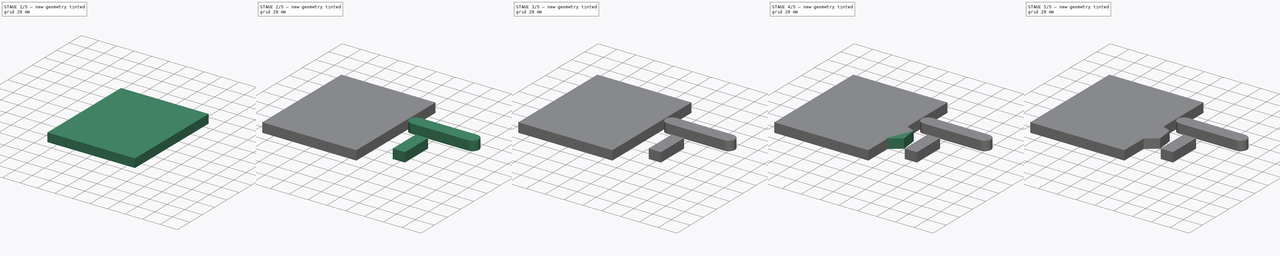
[diagram: build sequence overview — one tinted view per stage of 5, left to right]
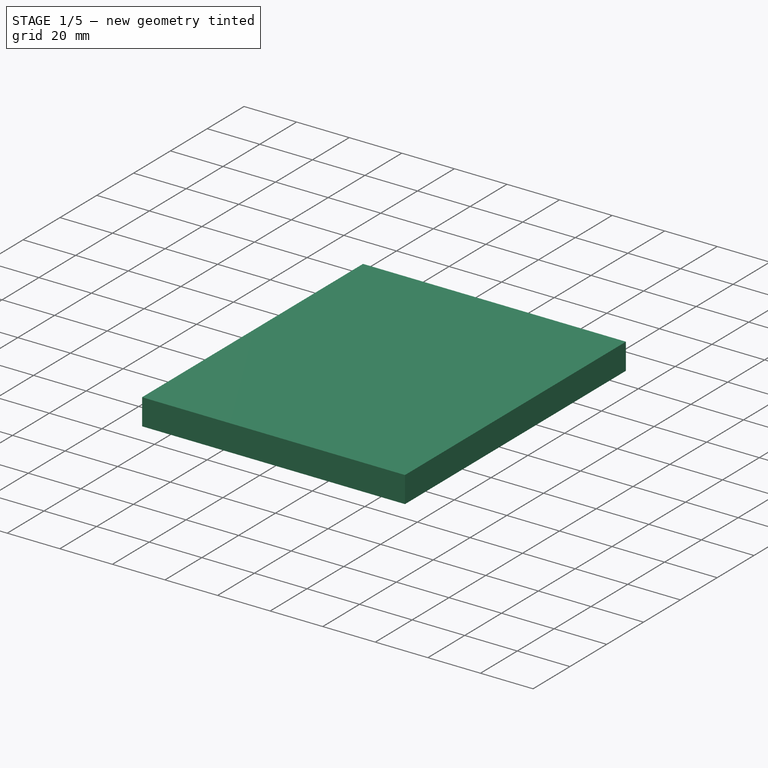
[diagram: stage 1 of 5 — iso view after this stage's code; geometry added in this stage tinted green]
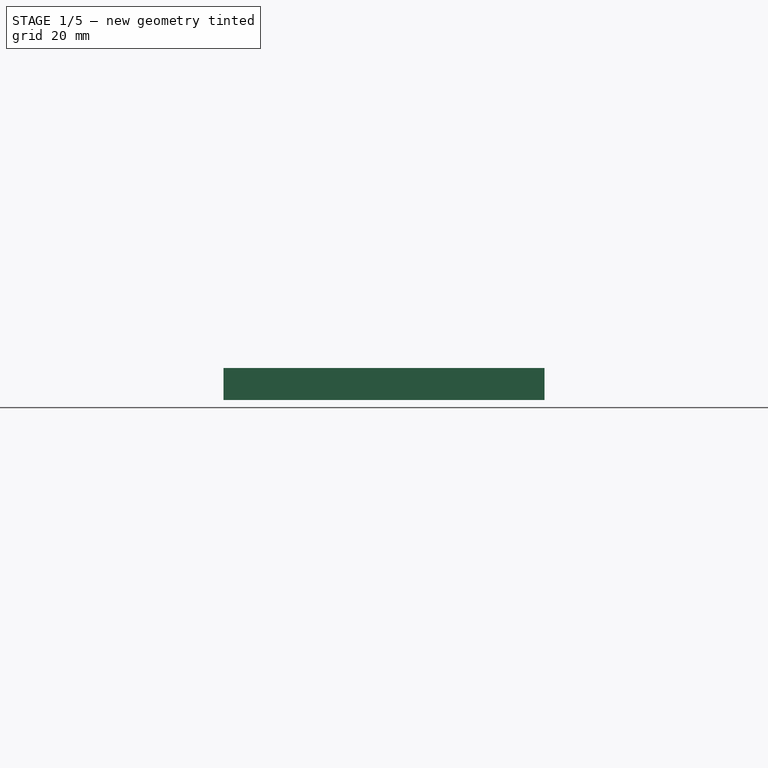
[diagram: stage 1 of 5 — front view after this stage's code; geometry added in this stage tinted green]
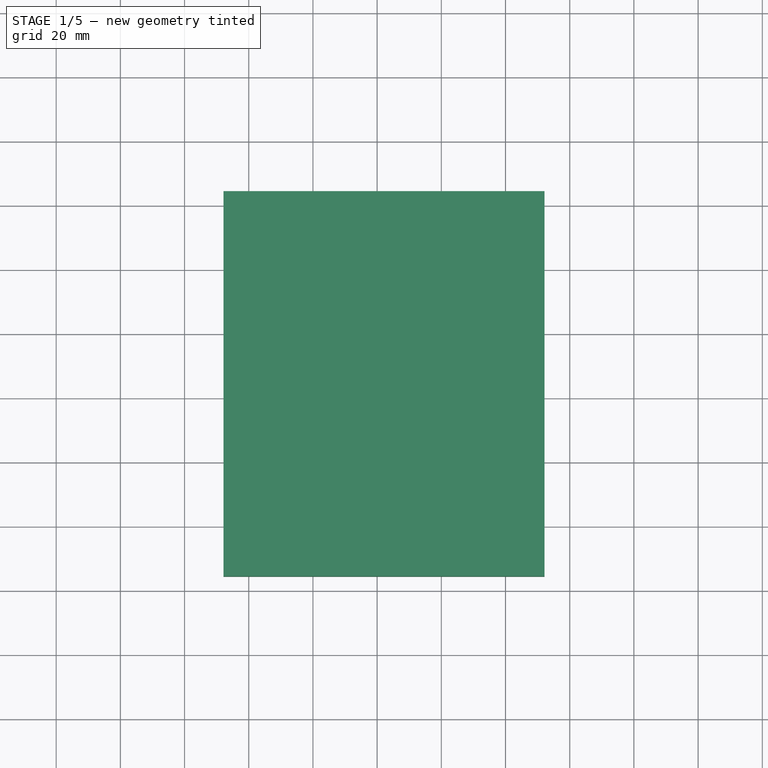
[diagram: stage 1 of 5 — top view after this stage's code; geometry added in this stage tinted green]
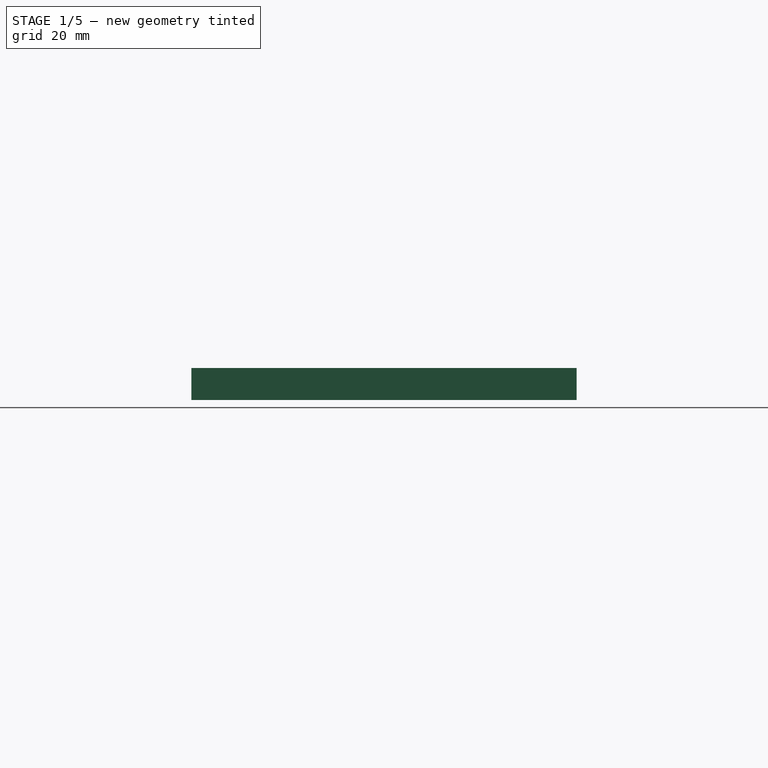
[diagram: stage 1 of 5 — right view after this stage's code; geometry added in this stage tinted green]
FCSTD DOCUMENT  (FreeCAD 0.18R15481 (Git))
Label: nestdemo
License: All rights reserved
LicenseURL: http://en.wikipedia.org/wiki/All_rights_reserved
objects: Part::FeaturePython×8, Sketcher::SketchObject×7, PartDesign::Pad×7, PartDesign::Body×7, Path::FeaturePython×2, Path::FeatureCompoundPython×1, App::FeaturePython×1, App::DocumentObjectGroup×1
note: 36 computed .brp shape members not serialized (recipe doc carries the construction recipe); baked Part::Feature solids carry a one-line shape summary decoded from their .brp

FEATURE [PartDesign::Body] Body005
  Group = -> [Sketch005,Pad005]
  Origin = -> Origin005
  Tip = -> Pad005
FEATURE [Sketcher::SketchObject] Sketch006
  MapMode = 5
  Support = -> [XY_Plane006]
  sketch-geometry (3):
    g0: LineSegment StartX=-33.0631 StartY=34.9198 StartZ=0 EndX=-22.4 EndY=42.9979 EndZ=0
    g1: LineSegment StartX=-22.4 StartY=42.9979 StartZ=0 EndX=-21.7538 EndY=30.073 EndZ=0
    g2: LineSegment StartX=-21.7538 StartY=30.073 StartZ=0 EndX=-33.0631 EndY=34.9198 EndZ=0
  constraints (3):
    c: Coincident(g0,g1)
    c: Coincident(g1,g2)
    c: Coincident(g2,g0)
FEATURE [PartDesign::Pad] Pad006
  Length = 10
  Length2 = 100
  Profile = -> Sketch006
  Type = 0
FEATURE [Part::FeaturePython] Clone006  label="Model-Body006"  # Draft clone (typed FeaturePython)
  AttacherType = Attacher::AttachEngine3D
  Fuse = false
  Objects = -> [Body006]
  PathResource = Model
  Scale = (1,1,1)
FEATURE [App::DocumentObjectGroup] Model
  Group = -> [Clone,Clone001,Clone002,Clone003,Clone004,Clone005,Clone006]
FEATURE [Path::FeaturePython] Default_Tool  label="Default Tool"  # Path/CAM operation (typed FeaturePython)
  HorizFeed = 0
  HorizRapid = 0
  SpindleDir = 0
  SpindleSpeed = 0
  ToolNumber = 1
  VertFeed = 0
  VertRapid = 0
  expr: HorizRapid = SetupSheet.HorizRapid
  expr: VertRapid = SetupSheet.VertRapid
FEATURE [Part::FeaturePython] Stock001  # WARN: FeaturePython — macro-defined, semantics opaque (R4)
  Height = 10
  Length = 100
  Placement = pos=(-67.8629,-35.5111,0) rot=(0,0,1;0rad)
  StockType = CreateBox
  Width = 120
FEATURE [Path::FeaturePython] Job  # Path/CAM operation (typed FeaturePython)
  GeometryTolerance = 0.01
  Model = -> Model
  Operations = -> Operations
  PostProcessor = 1
  SetupSheet = -> SetupSheet
  Stock = -> Stock001
  ToolController = -> [Default_Tool]
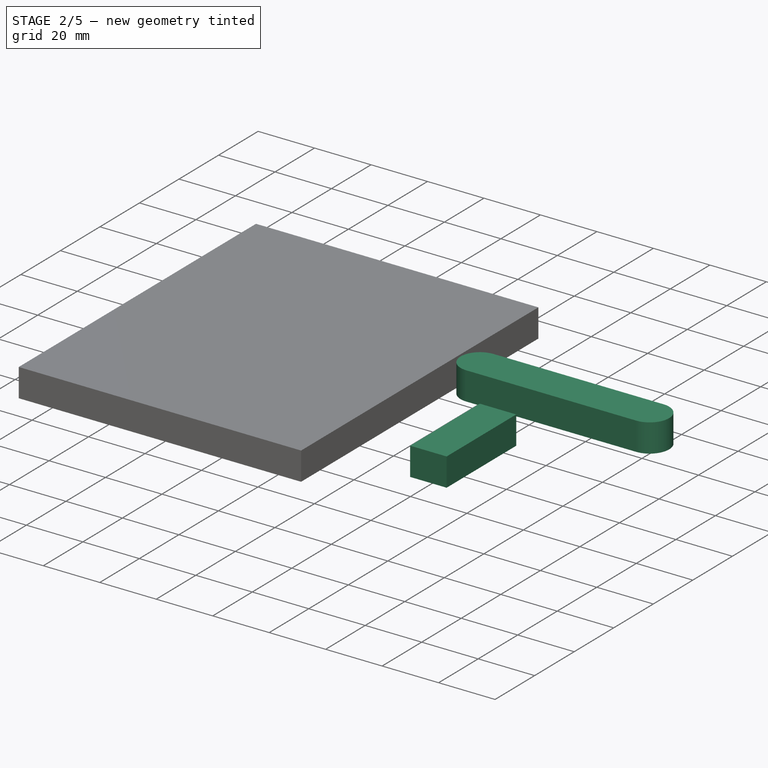
[diagram: stage 2 of 5 — iso view after this stage's code; geometry added in this stage tinted green]
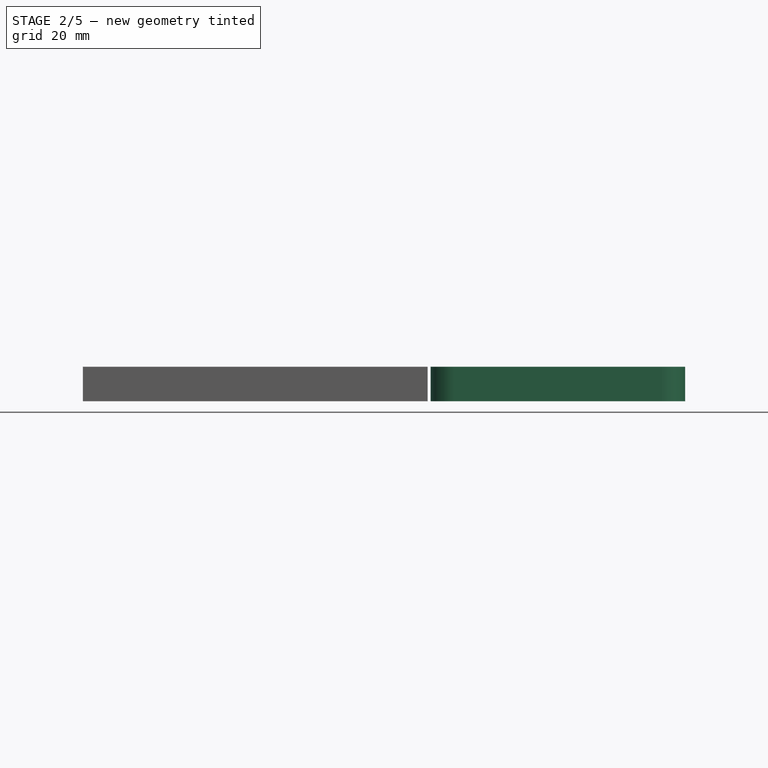
[diagram: stage 2 of 5 — front view after this stage's code; geometry added in this stage tinted green]
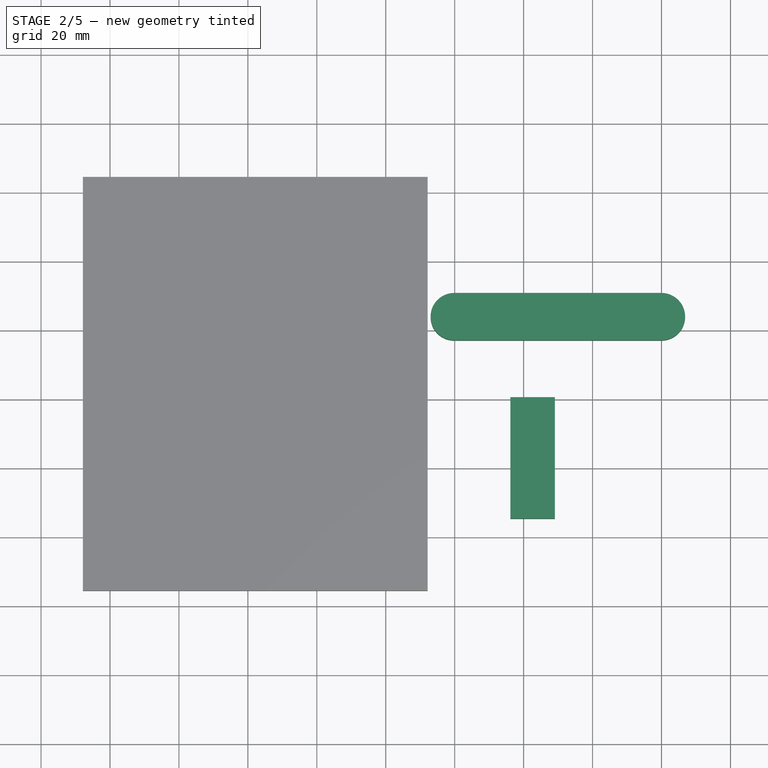
[diagram: stage 2 of 5 — top view after this stage's code; geometry added in this stage tinted green]
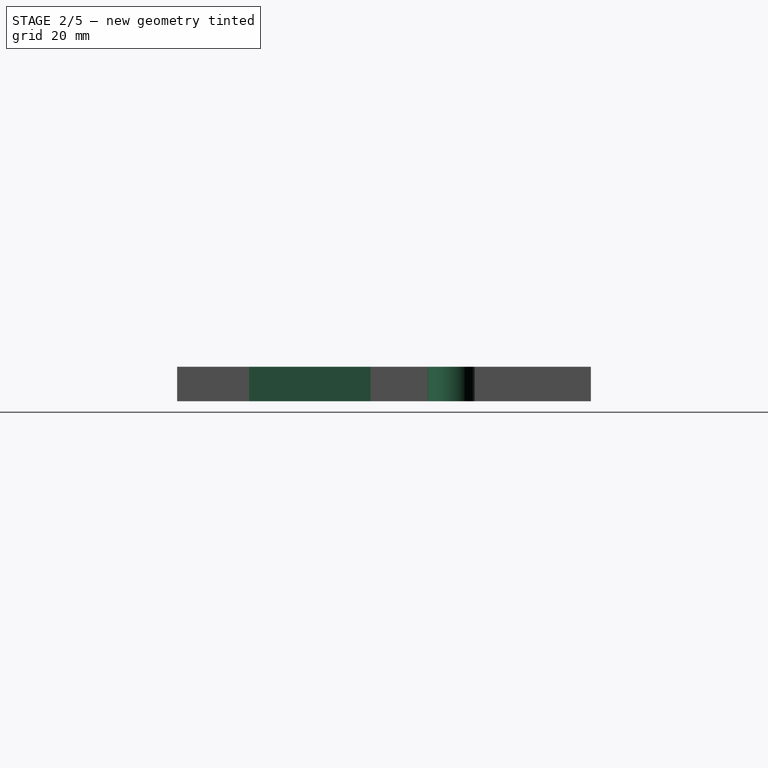
[diagram: stage 2 of 5 — right view after this stage's code; geometry added in this stage tinted green]
FEATURE [PartDesign::Body] Body002
  Group = -> [Sketch002,Pad002]
  Origin = -> Origin002
  Tip = -> Pad002
FEATURE [Sketcher::SketchObject] Sketch003
  MapMode = 5
  Support = -> [XY_Plane004]
  sketch-geometry (4):
    g0: ArcOfCircle CenterX=39.8673 CenterY=43.9558 CenterZ=0 NormalX=0 NormalY=0 NormalZ=1 AngleXU=0 Radius=6.86841 StartAngle=1.5708 EndAngle=4.71239
    g1: ArcOfCircle CenterX=99.9753 CenterY=43.9558 CenterZ=0 NormalX=0 NormalY=0 NormalZ=1 AngleXU=0 Radius=6.86841 StartAngle=4.71239 EndAngle=7.85398
    g2: LineSegment StartX=39.8673 StartY=37.0874 StartZ=0 EndX=99.9753 EndY=37.0874 EndZ=0
    g3: LineSegment StartX=39.8673 StartY=50.8242 StartZ=0 EndX=99.9753 EndY=50.8242 EndZ=0
  constraints (6):
    c: Tangent(g0,g3) = 1.5708
    c: Tangent(g0,g2) = -1.5708
    c: Tangent(g2,g1) = -1.5708
    c: Tangent(g3,g1) = 1.5708
    c: Horizontal(g2)
    c: Equal(g0,g1)
FEATURE [PartDesign::Pad] Pad003
  Length = 10
  Length2 = 100
  Profile = -> Sketch003
  Type = 0
FEATURE [PartDesign::Body] Body003
  Group = -> [Sketch004,Pad004]
  Origin = -> Origin003
  Tip = -> Pad004
FEATURE [Sketcher::SketchObject] Sketch005
  MapMode = 5
  Support = -> [XY_Plane005]
  sketch-geometry (4):
    g0: LineSegment StartX=56.1333 StartY=20.5902 StartZ=0 EndX=69.0582 EndY=20.5902 EndZ=0
    g1: LineSegment StartX=69.0582 StartY=20.5902 StartZ=0 EndX=69.0582 EndY=-14.6302 EndZ=0
    g2: LineSegment StartX=69.0582 StartY=-14.6302 StartZ=0 EndX=56.1333 EndY=-14.6302 EndZ=0
    g3: LineSegment StartX=56.1333 StartY=-14.6302 StartZ=0 EndX=56.1333 EndY=20.5902 EndZ=0
  constraints (8):
    c: Coincident(g0,g1)
    c: Coincident(g1,g2)
    c: Coincident(g2,g3)
    c: Coincident(g3,g0)
    c: Horizontal(g0)
    c: Horizontal(g2)
    c: Vertical(g1)
    c: Vertical(g3)
FEATURE [PartDesign::Pad] Pad005
  Length = 10
  Length2 = 100
  Profile = -> Sketch005
  Type = 0
FEATURE [Part::FeaturePython] Clone005  label="Model-Body005"  # Draft clone (typed FeaturePython)
  AttacherType = Attacher::AttachEngine3D
  Fuse = false
  Objects = -> [Body005]
  PathResource = Model
  Scale = (1,1,1)
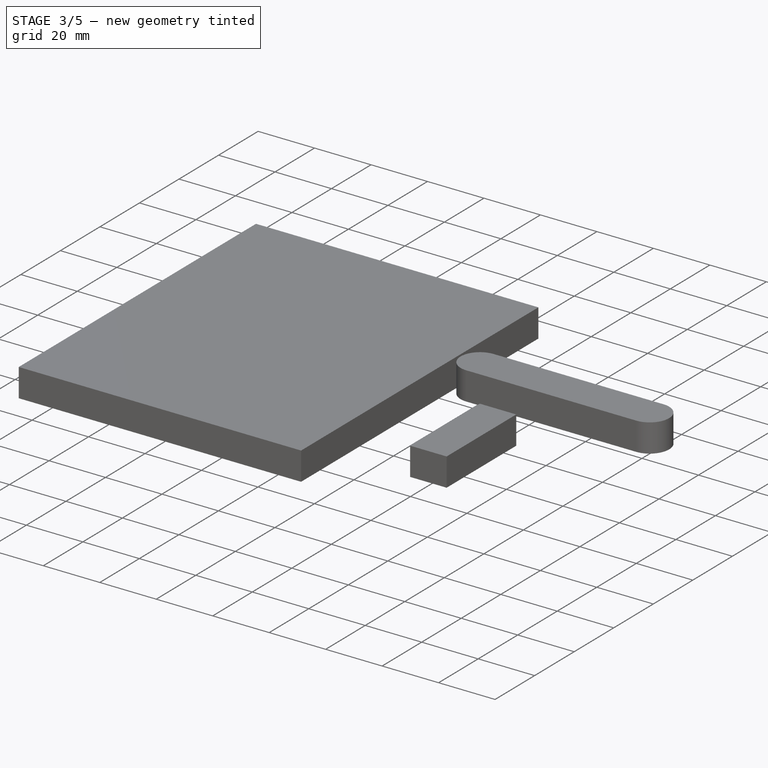
[diagram: stage 3 of 5 — iso view after this stage's code; geometry added in this stage tinted green]
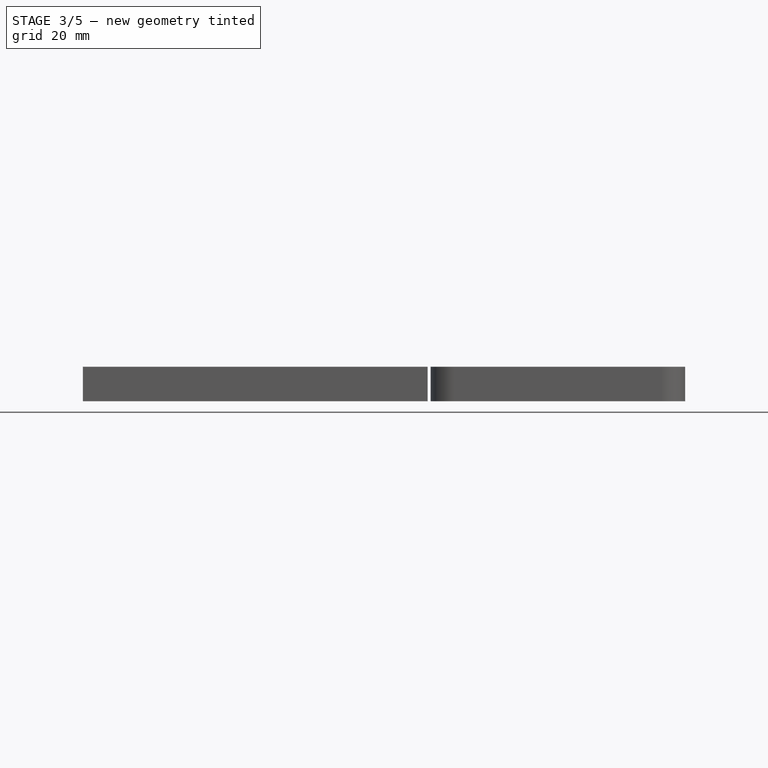
[diagram: stage 3 of 5 — front view after this stage's code; geometry added in this stage tinted green]
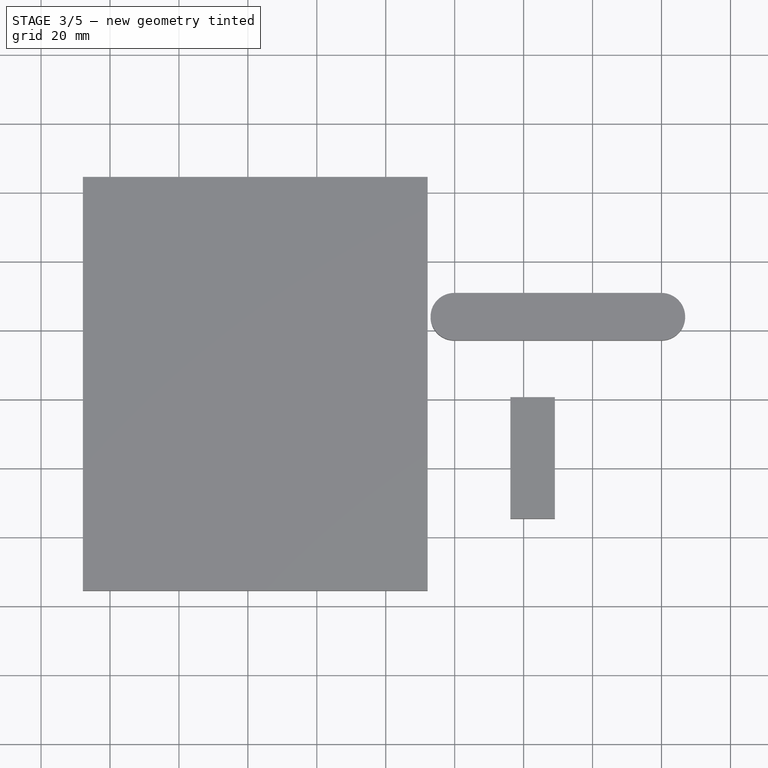
[diagram: stage 3 of 5 — top view after this stage's code; geometry added in this stage tinted green]
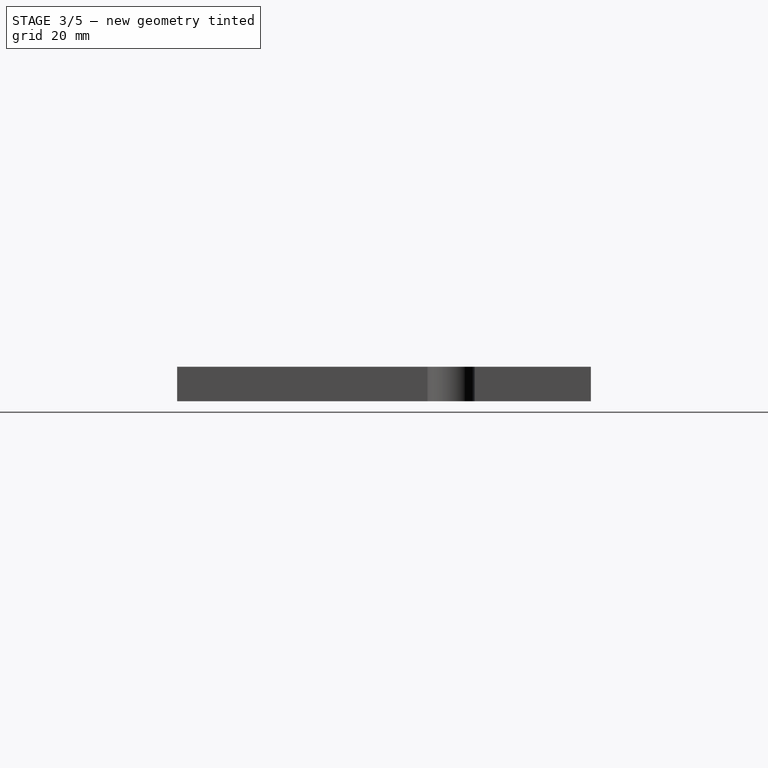
[diagram: stage 3 of 5 — right view after this stage's code; geometry added in this stage tinted green]
FEATURE [PartDesign::Body] Body004
  Group = -> [Sketch003,Pad003]
  Origin = -> Origin004
  Tip = -> Pad003
FEATURE [Sketcher::SketchObject] Sketch004
  MapMode = 5
  Support = -> [XY_Plane003]
  sketch-geometry (6):
    g0: LineSegment StartX=-6.51538 StartY=4.41575 StartZ=0 EndX=3.50262 EndY=4.41575 EndZ=0
    g1: LineSegment StartX=3.50262 StartY=4.41575 StartZ=0 EndX=6.69676 EndY=-7.19932 EndZ=0
    g2: LineSegment StartX=6.69676 StartY=-7.19932 StartZ=0 EndX=3.21224 EndY=-35.5111 EndZ=0
    g3: LineSegment StartX=3.21224 StartY=-35.5111 StartZ=0 EndX=-5.93463 EndY=-35.5111 EndZ=0
    g4: LineSegment StartX=-5.93463 StartY=-35.5111 StartZ=0 EndX=-9.12877 EndY=-5.60224 EndZ=0
    g5: LineSegment StartX=-9.12877 StartY=-5.60224 StartZ=0 EndX=-6.51538 EndY=4.41575 EndZ=0
  constraints (8):
    c: Horizontal(g0)
    c: Coincident(g0,g1)
    c: Coincident(g1,g2)
    c: Coincident(g2,g3)
    c: Horizontal(g3)
    c: Coincident(g3,g4)
    c: Coincident(g4,g5)
    c: Coincident(g5,g0)
FEATURE [PartDesign::Pad] Pad004
  Length = 10
  Length2 = 100
  Profile = -> Sketch004
  Type = 0
FEATURE [Part::FeaturePython] Clone003  label="Model-Body003"  # Draft clone (typed FeaturePython)
  AttacherType = Attacher::AttachEngine3D
  Fuse = false
  Objects = -> [Body003]
  PathResource = Model
  Scale = (1,1,1)
FEATURE [Part::FeaturePython] Clone004  label="Model-Body004"  # Draft clone (typed FeaturePython)
  AttacherType = Attacher::AttachEngine3D
  Fuse = false
  Objects = -> [Body004]
  PathResource = Model
  Scale = (1,1,1)
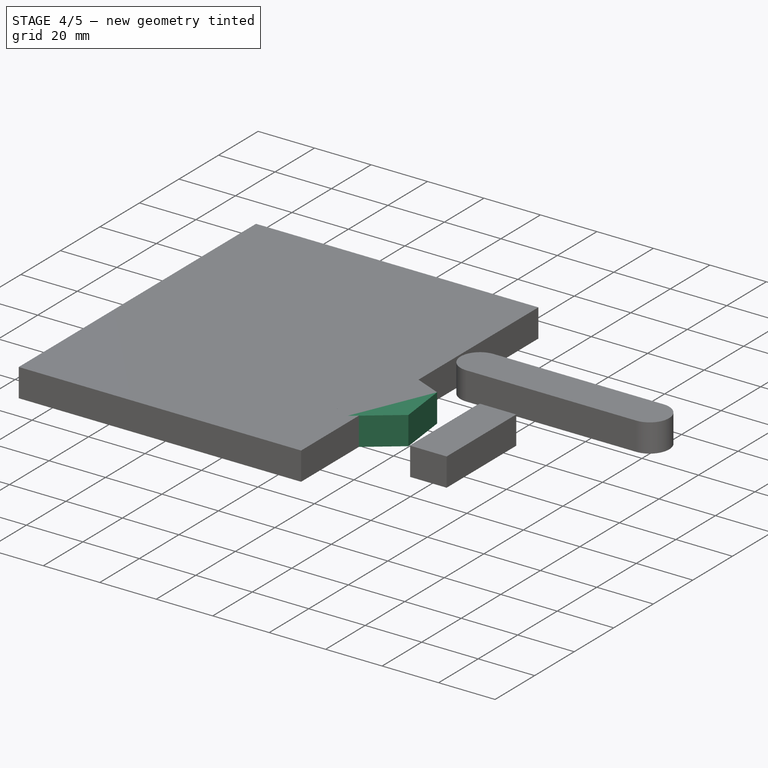
[diagram: stage 4 of 5 — iso view after this stage's code; geometry added in this stage tinted green]
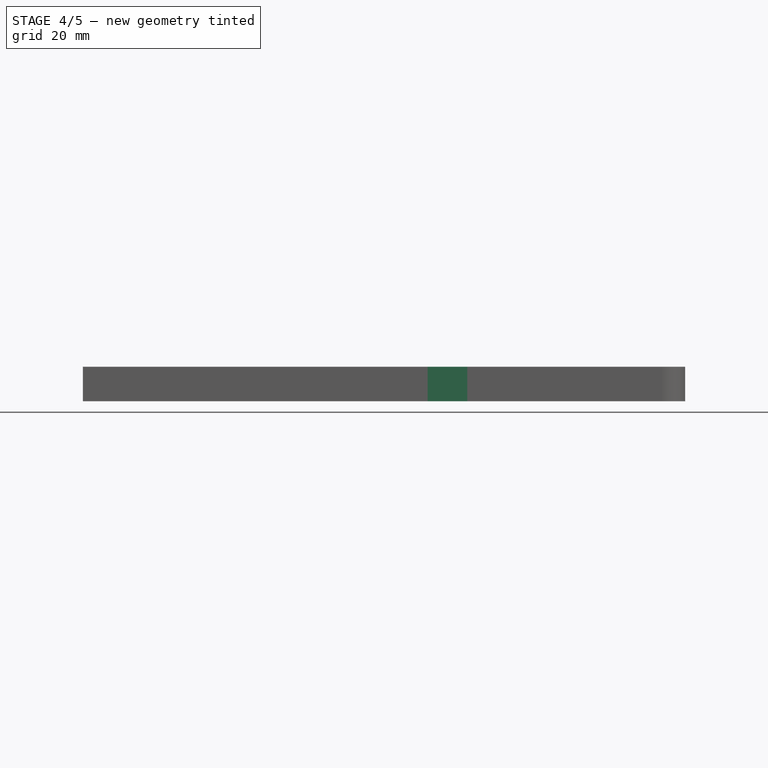
[diagram: stage 4 of 5 — front view after this stage's code; geometry added in this stage tinted green]
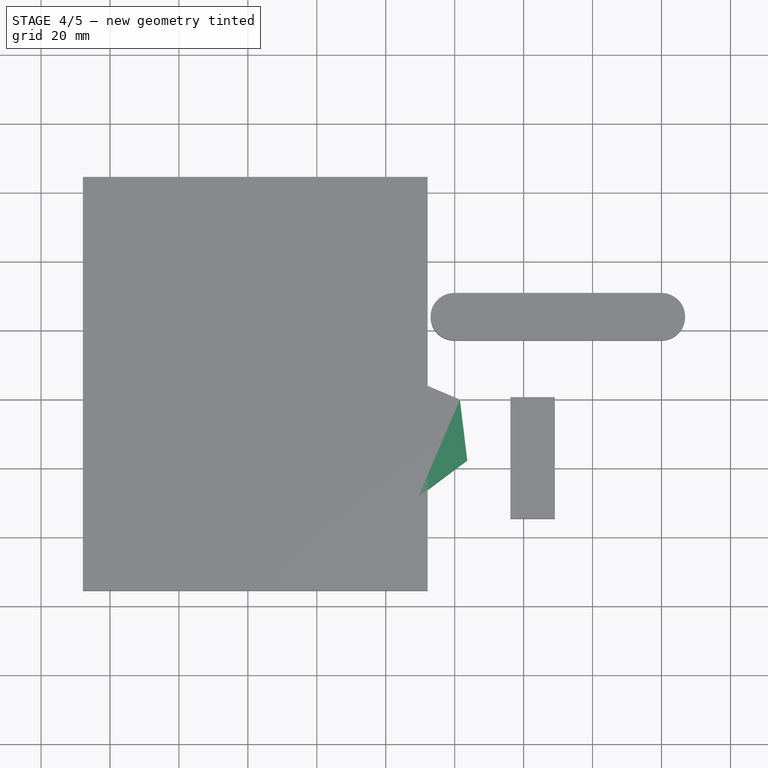
[diagram: stage 4 of 5 — top view after this stage's code; geometry added in this stage tinted green]
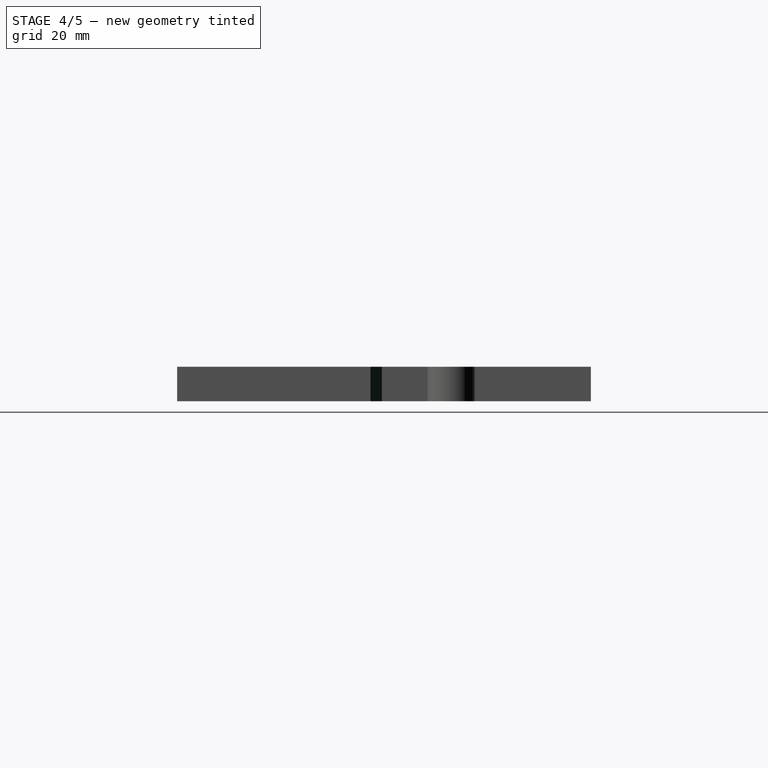
[diagram: stage 4 of 5 — right view after this stage's code; geometry added in this stage tinted green]
FEATURE [PartDesign::Body] Body
  Group = -> [Sketch,Pad]
  Origin = -> Origin
  Tip = -> Pad
FEATURE [Sketcher::SketchObject] Sketch001
  MapMode = 5
  Support = -> [XY_Plane001]
  sketch-geometry (7):
    g0: LineSegment StartX=43.6291 StartY=2.35548 StartZ=0 EndX=41.5092 EndY=19.8893 EndZ=0
    g1: LineSegment StartX=41.5092 StartY=19.8893 StartZ=0 EndX=25.2645 EndY=26.8204 EndZ=0
    g2: LineSegment StartX=25.2645 StartY=26.8204 StartZ=0 EndX=11.1397 EndY=16.2176 EndZ=0
    g3: LineSegment StartX=11.1397 StartY=16.2176 StartZ=0 EndX=13.2596 EndY=-1.31623 EndZ=0
    g4: LineSegment StartX=13.2596 StartY=-1.31623 StartZ=0 EndX=29.5043 EndY=-8.24728 EndZ=0
    g5: LineSegment StartX=29.5043 StartY=-8.24728 StartZ=0 EndX=43.6291 EndY=2.35548 EndZ=0
    g6: Circle [constr] CenterX=27.3844 CenterY=9.28654 CenterZ=0 NormalX=0 NormalY=0 NormalZ=1 AngleXU=0 Radius=17.6615
  constraints (13):
    c: Coincident(g0,g1)
    c: Coincident(g1,g2)
    c: Coincident(g2,g3)
    c: Coincident(g3,g4)
    c: Coincident(g4,g5)
    c: Coincident(g5,g0)
    c: Equal(g0, g1-g5) x5
    c: PointOnObject(g0,g6)
    c: PointOnObject(g1,g6)
    c: PointOnObject(g2,g6)
    c: PointOnObject(g3,g6)
    c: PointOnObject(g4,g6)
    c: PointOnObject(g5,g6)
FEATURE [PartDesign::Pad] Pad001
  Length = 10
  Length2 = 100
  Profile = -> Sketch001
  Type = 0
FEATURE [PartDesign::Body] Body001
  Group = -> [Sketch001,Pad001]
  Origin = -> Origin001
  Tip = -> Pad001
FEATURE [Sketcher::SketchObject] Sketch002
  MapMode = 5
  Support = -> [XY_Plane002]
  sketch-geometry (4):
    g0: LineSegment StartX=-16.4861 StartY=54.6064 StartZ=0 EndX=-2.62398 EndY=28.1817 EndZ=0
    g1: LineSegment StartX=-2.62398 StartY=28.1817 StartZ=0 EndX=4.30707 EndY=28.1817 EndZ=0
    g2: LineSegment StartX=4.30707 StartY=28.1817 StartZ=0 EndX=17.0862 EndY=54.6064 EndZ=0
    g3: LineSegment StartX=17.0862 StartY=54.6064 StartZ=0 EndX=-16.4861 EndY=54.6064 EndZ=0
  constraints (6):
    c: Coincident(g0,g1)
    c: Horizontal(g1)
    c: Coincident(g1,g2)
    c: Coincident(g2,g3)
    c: Coincident(g3,g0)
    c: Horizontal(g3)
FEATURE [PartDesign::Pad] Pad002
  Length = 10
  Length2 = 100
  Profile = -> Sketch002
  Type = 0
FEATURE [Part::FeaturePython] Clone002  label="Model-Body002"  # Draft clone (typed FeaturePython)
  AttacherType = Attacher::AttachEngine3D
  Fuse = false
  Objects = -> [Body002]
  PathResource = Model
  Scale = (1,1,1)
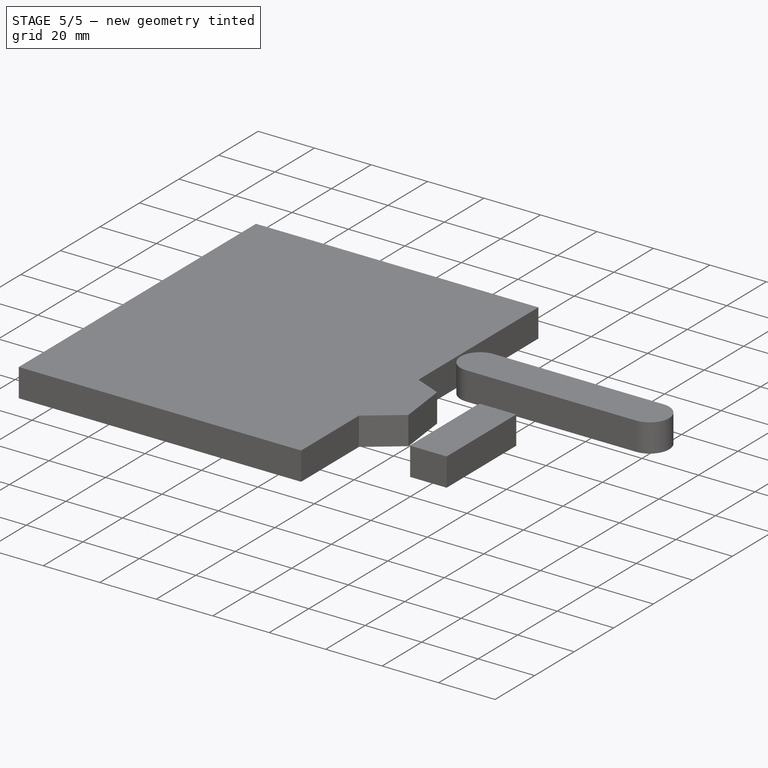
[diagram: stage 5 of 5 — iso view after this stage's code; geometry added in this stage tinted green]
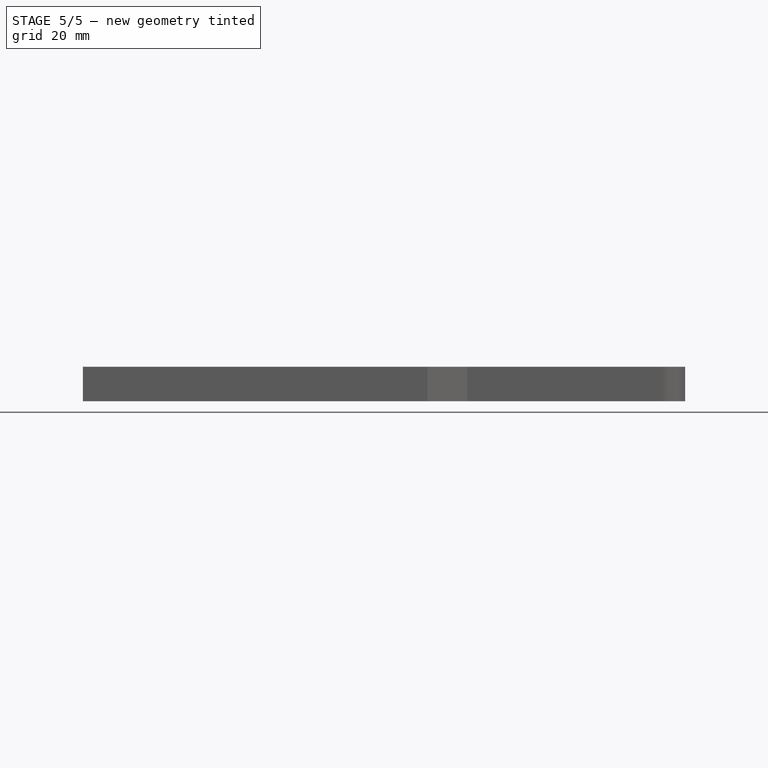
[diagram: stage 5 of 5 — front view after this stage's code; geometry added in this stage tinted green]
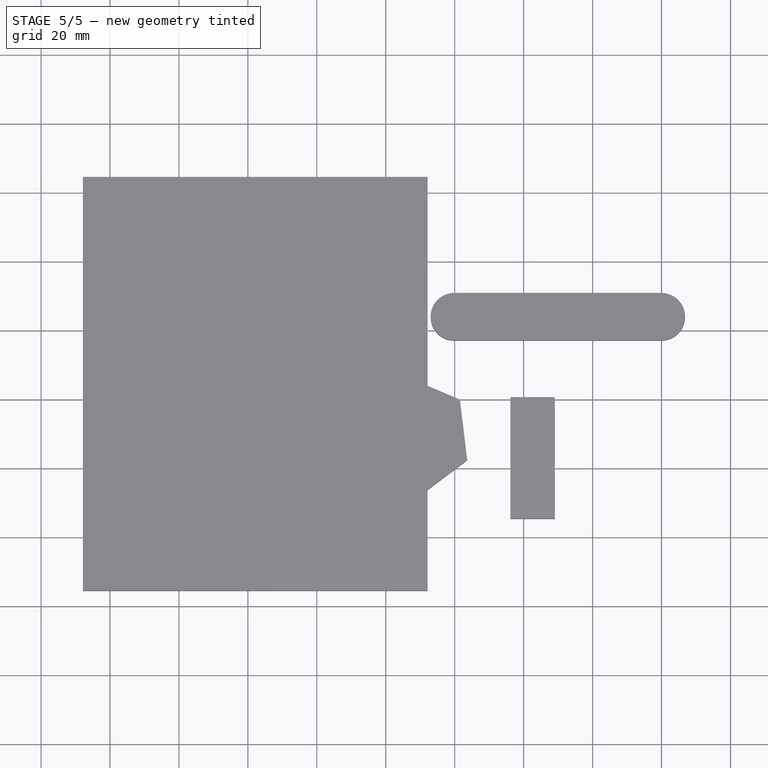
[diagram: stage 5 of 5 — top view after this stage's code; geometry added in this stage tinted green]
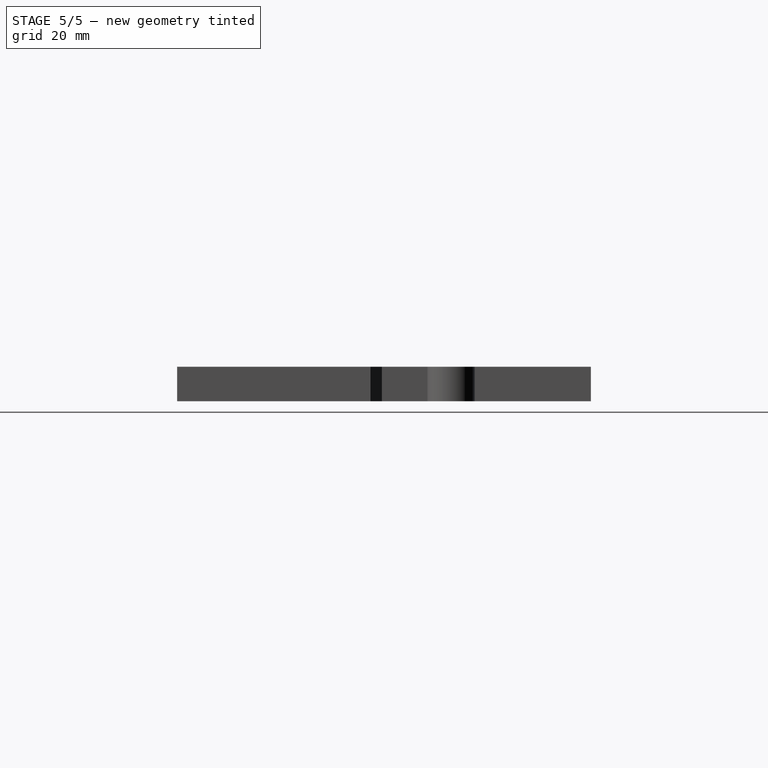
[diagram: stage 5 of 5 — right view after this stage's code; geometry added in this stage tinted green]
FEATURE [Sketcher::SketchObject] Sketch
  MapMode = 5
  Support = -> [XY_Plane]
  sketch-geometry (6):
    g0: ArcOfCircle CenterX=-57.435 CenterY=27.1634 CenterZ=0 NormalX=0 NormalY=0 NormalZ=1 AngleXU=0 Radius=10.4331 StartAngle=1.66427 EndAngle=4.07407
    g1: LineSegment StartX=-58.4089 StartY=37.5509 StartZ=0 EndX=-12.2979 EndY=12.0276 EndZ=0
    g2: LineSegment StartX=-63.6515 StartY=18.7846 StartZ=0 EndX=-25.5947 EndY=9.17918 EndZ=0
    g3: LineSegment StartX=-25.5947 StartY=9.17918 StartZ=0 EndX=-57.9801 EndY=2.10874 EndZ=0
    g4: LineSegment StartX=-12.2979 StartY=12.0276 StartZ=0 EndX=-34.8664 EndY=-11.7602 EndZ=0
    g5: LineSegment StartX=-34.8664 StartY=-11.7602 StartZ=0 EndX=-57.9801 EndY=2.10874 EndZ=0
  constraints (6):
    c: Coincident(g1,g0)
    c: Coincident(g3,g2)
    c: Coincident(g4,g1)
    c: Coincident(g5,g4)
    c: Coincident(g5,g3)
    c: Coincident(g0,g2)
FEATURE [PartDesign::Pad] Pad
  Length = 10
  Length2 = 100
  Profile = -> Sketch
  Type = 0
FEATURE [PartDesign::Body] Body006
  Group = -> [Sketch006,Pad006]
  Origin = -> Origin006
  Tip = -> Pad006
FEATURE [Path::FeatureCompoundPython] Operations  # Path/CAM operation (typed FeaturePython)
  UsePlacements = false
FEATURE [App::FeaturePython] SetupSheet  # Path/CAM operation (typed FeaturePython)
  ClearanceHeightExpression = OpStockZMax+SetupSheet.ClearanceHeightOffset
  ClearanceHeightOffset = 5
  FinalDepthExpression = OpFinalDepth
  HorizRapid = 0
  SafeHeightExpression = OpStockZMax+SetupSheet.SafeHeightOffset
  SafeHeightOffset = 3
  StartDepthExpression = OpStartDepth
  StepDownExpression = OpToolDiameter
  VertRapid = 0
FEATURE [Part::FeaturePython] Clone  label="Model-Body"  # Draft clone (typed FeaturePython)
  AttacherType = Attacher::AttachEngine3D
  Fuse = false
  Objects = -> [Body]
  PathResource = Model
  Scale = (1,1,1)
FEATURE [Part::FeaturePython] Clone001  label="Model-Body001"  # Draft clone (typed FeaturePython)
  AttacherType = Attacher::AttachEngine3D
  Fuse = false
  Objects = -> [Body001]
  PathResource = Model
  Scale = (1,1,1)
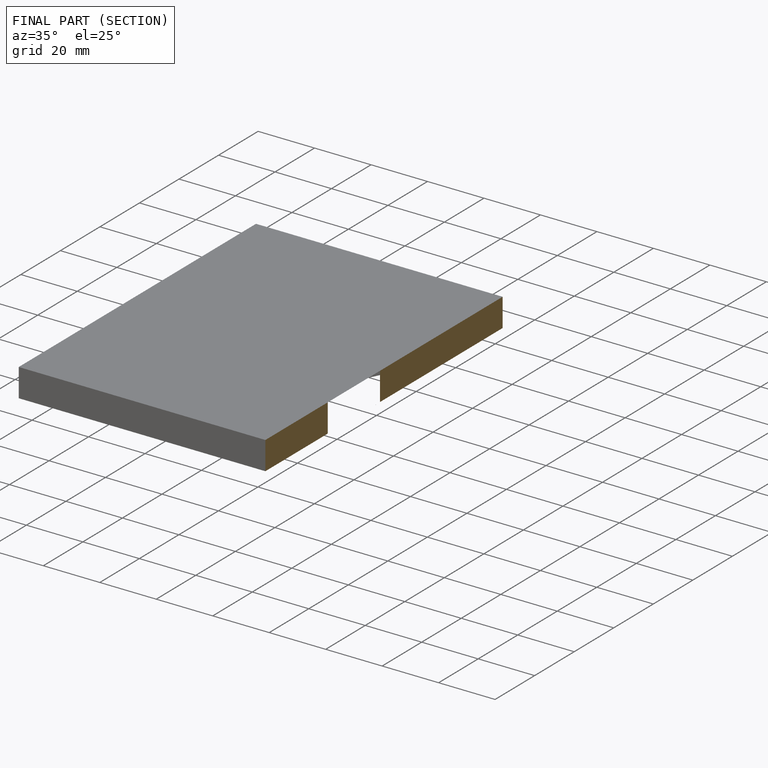
[diagram: finished part — half-section view (interior)]
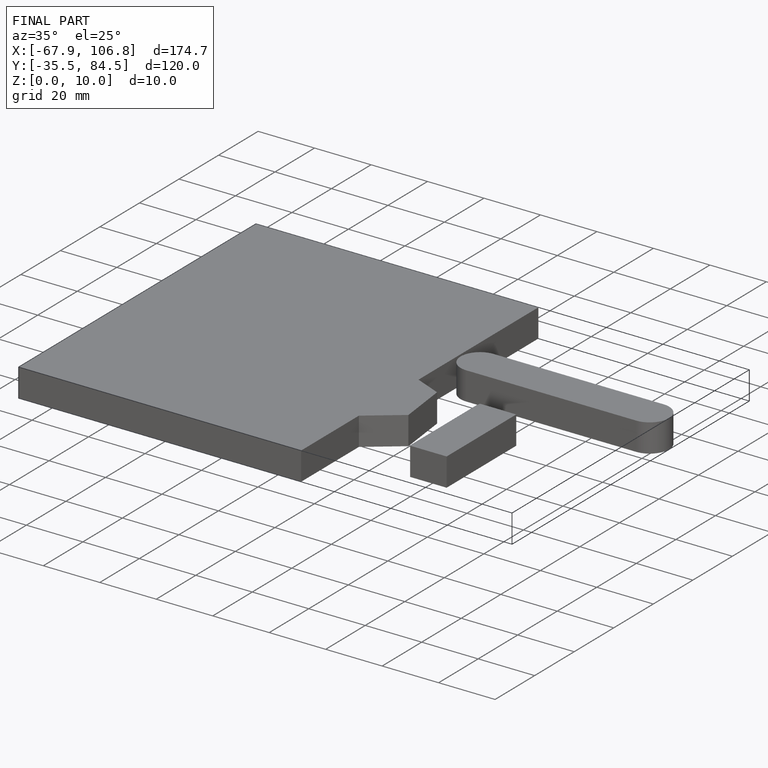
[diagram: finished part — iso view with bounding-box wireframe]
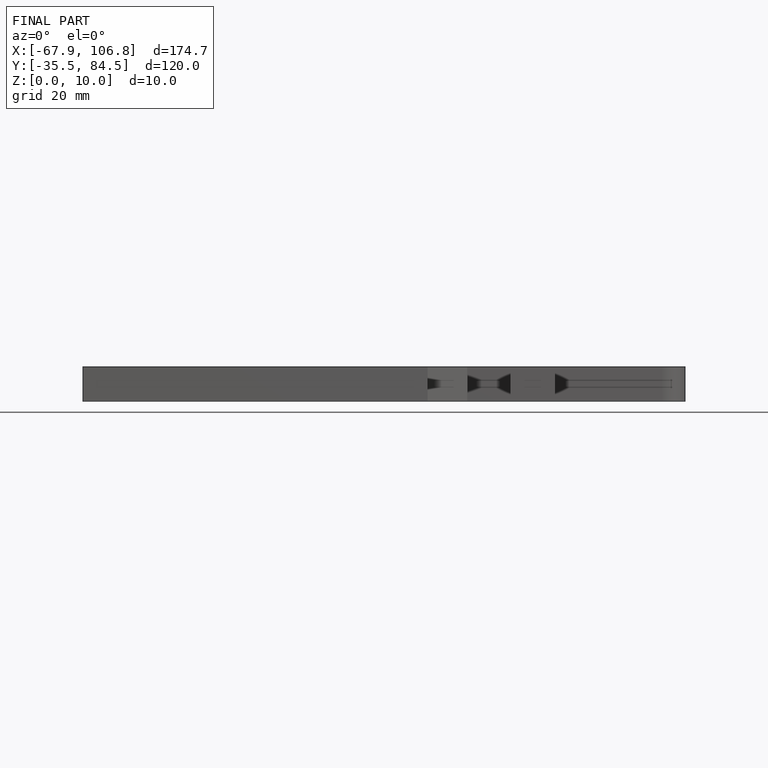
[diagram: finished part — front view with bounding-box wireframe]
